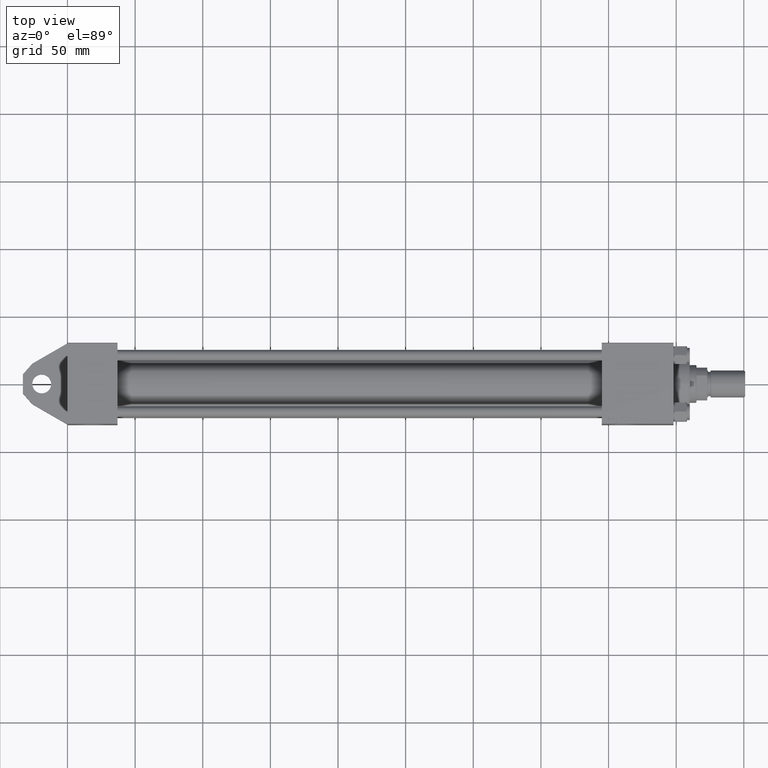
[diagram: clean part render]
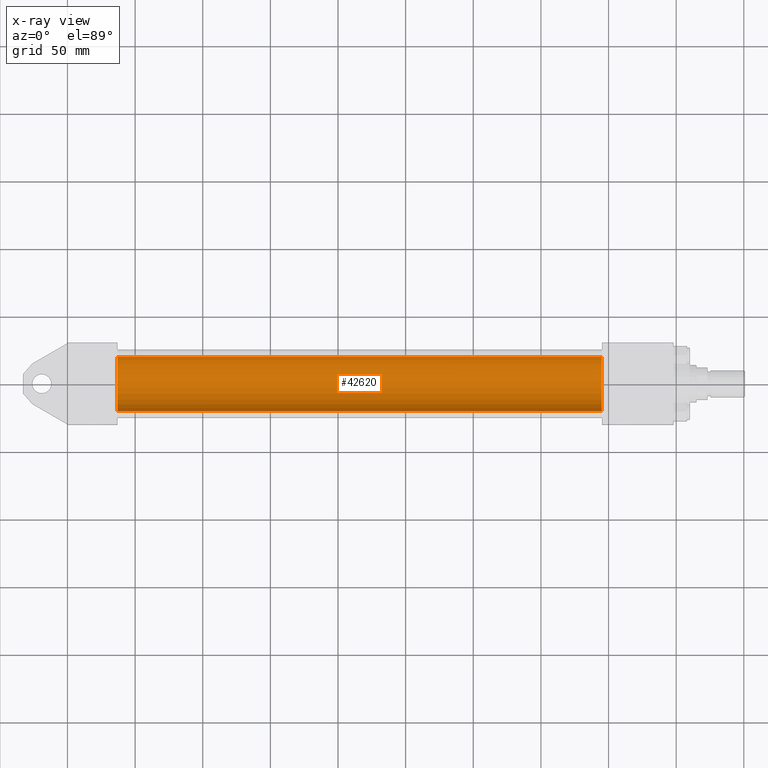
[diagram: x-ray — body ghosted, one internal face saturated and labeled with its STEP entity id]
A machine part, top view, then the same camera in x-ray: the body is ghosted and one INTERNAL B-rep face — a face not visible from any outside direction — is saturated and labeled: STEP entity #42620.
In plain terms, the highlighted cylindrical surface (edge-blend (fillet) strip) has radius 20 mm, axis along (-1, -0, 0).
Its self-contained STEP definition (entity closure, byte-faithful):
#613 = CARTESIAN_POINT ( 'NONE',  ( 394.9999999999999432, -2.602085213965210642E-15, 20.00000000000000000 ) ) ;
#4142 = LINE ( 'NONE', #613, #34058 ) ;
#7139 = CARTESIAN_POINT ( 'NONE',  ( 37.00000000000000000, -2.602085213965210642E-15, 0.000000000000000000 ) ) ;
#8837 = VECTOR ( 'NONE', #35716, 1000.000000000000000 ) ;
#10179 = VERTEX_POINT ( 'NONE', #39780 ) ;
#11711 = CARTESIAN_POINT ( 'NONE',  ( 394.9999999999999432, -1.527916156705046464E-16, -20.00000000000000000 ) ) ;
#12086 = AXIS2_PLACEMENT_3D ( 'NONE', #43353, #17948, #17262 ) ;
#12176 = DIRECTION ( 'NONE',  ( -1.000000000000000000, -0.000000000000000000, -0.000000000000000000 ) ) ;
#15560 = ORIENTED_EDGE ( 'NONE', *, *, #17462, .F. ) ;
#16398 = DIRECTION ( 'NONE',  ( 0.000000000000000000, 0.000000000000000000, 1.000000000000000000 ) ) ;
#16509 = CARTESIAN_POINT ( 'NONE',  ( 37.00000000000000000, -1.527916156705046464E-16, -20.00000000000000000 ) ) ;
#17262 = DIRECTION ( 'NONE',  ( 0.000000000000000000, 0.000000000000000000, -1.000000000000000000 ) ) ;
#17462 = EDGE_CURVE ( 'NONE', #24987, #43301, #4142, .T. ) ;
#17948 = DIRECTION ( 'NONE',  ( 1.000000000000000000, 0.000000000000000000, 0.000000000000000000 ) ) ;
#19851 = VERTEX_POINT ( 'NONE', #16509 ) ;
#24831 = EDGE_LOOP ( 'NONE', ( #26809, #26146, #28581, #15560 ) ) ;
#24987 = VERTEX_POINT ( 'NONE', #45701 ) ;
#26146 = ORIENTED_EDGE ( 'NONE', *, *, #33702, .T. ) ;
#26809 = ORIENTED_EDGE ( 'NONE', *, *, #41961, .T. ) ;
#27453 = CARTESIAN_POINT ( 'NONE',  ( 394.9999999999999432, -2.602085213965210642E-15, 0.000000000000000000 ) ) ;
#28581 = ORIENTED_EDGE ( 'NONE', *, *, #31129, .F. ) ;
#28589 = AXIS2_PLACEMENT_3D ( 'NONE', #27453, #12176, #16398 ) ;
#29126 = FACE_OUTER_BOUND ( 'NONE', #24831, .T. ) ;
#31129 = EDGE_CURVE ( 'NONE', #43301, #19851, #35788, .T. ) ;
#33702 = EDGE_CURVE ( 'NONE', #10179, #19851, #35947, .T. ) ;
#34058 = VECTOR ( 'NONE', #43670, 1000.000000000000000 ) ;
#35386 = DIRECTION ( 'NONE',  ( 0.000000000000000000, 0.000000000000000000, -1.000000000000000000 ) ) ;
#35716 = DIRECTION ( 'NONE',  ( -1.000000000000000000, -0.000000000000000000, -0.000000000000000000 ) ) ;
#35788 = CIRCLE ( 'NONE', #40301, 20.00000000000000000 ) ;
#35947 = LINE ( 'NONE', #11711, #8837 ) ;
#36897 = CARTESIAN_POINT ( 'NONE',  ( 37.00000000000000000, -2.602085213965210642E-15, 20.00000000000000000 ) ) ;
#39152 = CIRCLE ( 'NONE', #12086, 20.00000000000000000 ) ;
#39780 = CARTESIAN_POINT ( 'NONE',  ( 394.9999999999999432, -1.527916156705046464E-16, -20.00000000000000000 ) ) ;
#39956 = CYLINDRICAL_SURFACE ( 'NONE', #28589, 20.00000000000000000 ) ;
#40301 = AXIS2_PLACEMENT_3D ( 'NONE', #7139, #43365, #35386 ) ;
#41961 = EDGE_CURVE ( 'NONE', #24987, #10179, #39152, .T. ) ;
#42620 = ADVANCED_FACE ( 'NONE', ( #29126 ), #39956, .F. ) ;
#43301 = VERTEX_POINT ( 'NONE', #36897 ) ;
#43353 = CARTESIAN_POINT ( 'NONE',  ( 394.9999999999999432, -2.602085213965210642E-15, 0.000000000000000000 ) ) ;
#43365 = DIRECTION ( 'NONE',  ( 1.000000000000000000, 0.000000000000000000, 0.000000000000000000 ) ) ;
#43670 = DIRECTION ( 'NONE',  ( -1.000000000000000000, -0.000000000000000000, -0.000000000000000000 ) ) ;
#45701 = CARTESIAN_POINT ( 'NONE',  ( 394.9999999999999432, -2.602085213965210642E-15, 20.00000000000000000 ) ) ;